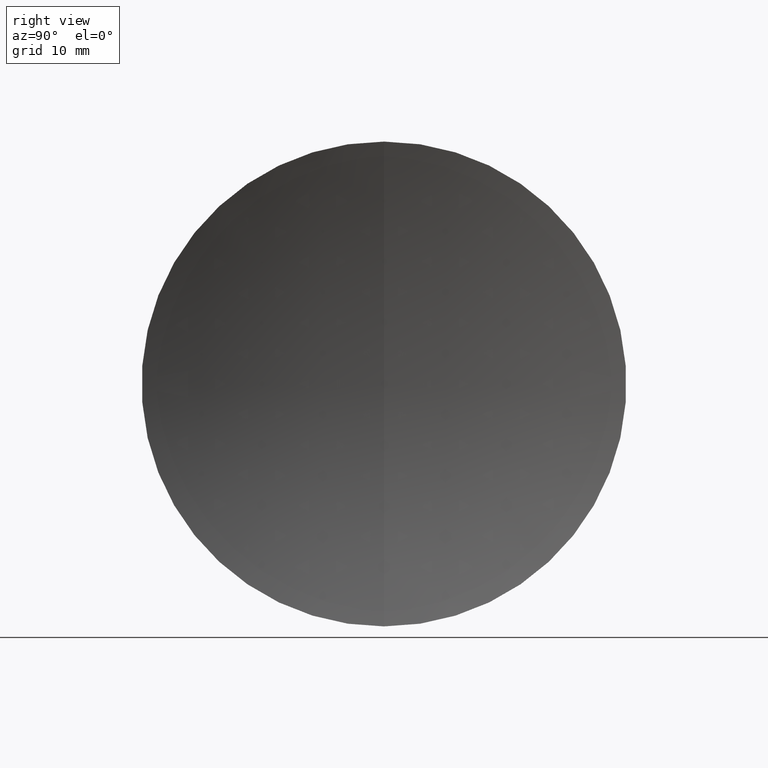
[diagram: clean part render]
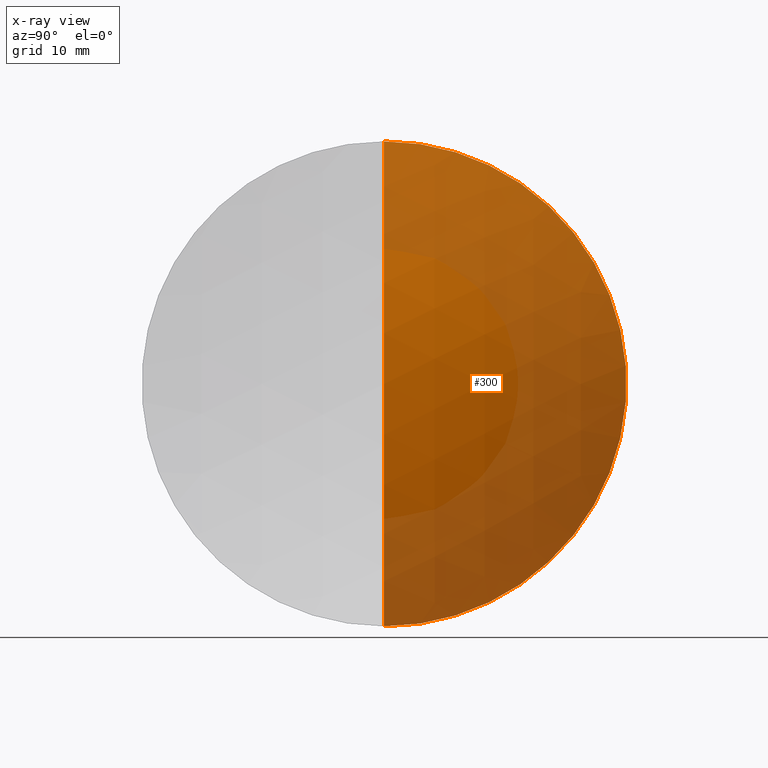
[diagram: x-ray — body ghosted, one internal face saturated and labeled with its STEP entity id]
A machine part, right view, then the same camera in x-ray: the body is ghosted and one INTERNAL B-rep face — a face not visible from any outside direction — is saturated and labeled: STEP entity #300.
In plain terms, the highlighted spherical surface has radius 49.89 mm.
Its self-contained STEP definition (entity closure, byte-faithful):
#5 = DIRECTION ( 'NONE',  ( 0.0000000000000000000, 0.0000000000000000000, 1.000000000000000000 ) ) ;
#22 = SPHERICAL_SURFACE ( 'NONE', #259, 49.88999999999998600 ) ;
#29 = CARTESIAN_POINT ( 'NONE',  ( 104.2995427577912200, 3.110602869834277700E-015, -25.40000000000000600 ) ) ;
#35 = CARTESIAN_POINT ( 'NONE',  ( 61.35944378259088700, 0.0000000000000000000, 1.934033328962417500E-014 ) ) ;
#43 = CARTESIAN_POINT ( 'NONE',  ( 104.2995427577912200, 0.0000000000000000000, 0.0000000000000000000 ) ) ;
#47 = ORIENTED_EDGE ( 'NONE', *, *, #247, .F. ) ;
#57 = ORIENTED_EDGE ( 'NONE', *, *, #187, .F. ) ;
#59 = DIRECTION ( 'NONE',  ( 0.0000000000000000000, -1.224646799147353200E-016, 1.000000000000000000 ) ) ;
#61 = AXIS2_PLACEMENT_3D ( 'NONE', #122, #96, #89 ) ;
#78 = CARTESIAN_POINT ( 'NONE',  ( 111.2494437825908900, 0.0000000000000000000, 2.239521473009724700E-014 ) ) ;
#82 = VERTEX_POINT ( 'NONE', #29 ) ;
#86 = CIRCLE ( 'NONE', #239, 25.40000000000000600 ) ;
#89 = DIRECTION ( 'NONE',  ( 0.0000000000000000000, 0.0000000000000000000, -1.000000000000000000 ) ) ;
#96 = DIRECTION ( 'NONE',  ( 0.0000000000000000000, -1.000000000000000000, 0.0000000000000000000 ) ) ;
#100 = VERTEX_POINT ( 'NONE', #317 ) ;
#103 = ORIENTED_EDGE ( 'NONE', *, *, #146, .T. ) ;
#116 = VERTEX_POINT ( 'NONE', #78 ) ;
#122 = CARTESIAN_POINT ( 'NONE',  ( 61.35944378259088700, 0.0000000000000000000, 1.934033328962417500E-014 ) ) ;
#132 = DIRECTION ( 'NONE',  ( 0.0000000000000000000, 1.000000000000000000, 0.0000000000000000000 ) ) ;
#146 = EDGE_CURVE ( 'NONE', #116, #82, #153, .T. ) ;
#153 = CIRCLE ( 'NONE', #344, 49.88999999999998600 ) ;
#178 = DIRECTION ( 'NONE',  ( -1.000000000000000000, -0.0000000000000000000, -0.0000000000000000000 ) ) ;
#187 = EDGE_CURVE ( 'NONE', #100, #82, #86, .T. ) ;
#223 = DIRECTION ( 'NONE',  ( -0.0000000000000000000, 1.000000000000000000, 1.224646799147353200E-016 ) ) ;
#230 = EDGE_LOOP ( 'NONE', ( #47, #103, #57 ) ) ;
#234 = FACE_OUTER_BOUND ( 'NONE', #230, .T. ) ;
#239 = AXIS2_PLACEMENT_3D ( 'NONE', #43, #178, #5 ) ;
#247 = EDGE_CURVE ( 'NONE', #116, #100, #306, .T. ) ;
#259 = AXIS2_PLACEMENT_3D ( 'NONE', #285, #132, #282 ) ;
#282 = DIRECTION ( 'NONE',  ( 0.0000000000000000000, 0.0000000000000000000, 1.000000000000000000 ) ) ;
#285 = CARTESIAN_POINT ( 'NONE',  ( 61.35944378259088700, 0.0000000000000000000, 1.934033328962417500E-014 ) ) ;
#300 = ADVANCED_FACE ( 'NONE', ( #234 ), #22, .T. ) ;
#306 = CIRCLE ( 'NONE', #61, 49.88999999999998600 ) ;
#317 = CARTESIAN_POINT ( 'NONE',  ( 104.2995427577912200, 0.0000000000000000000, 25.40000000000000600 ) ) ;
#344 = AXIS2_PLACEMENT_3D ( 'NONE', #35, #223, #59 ) ;